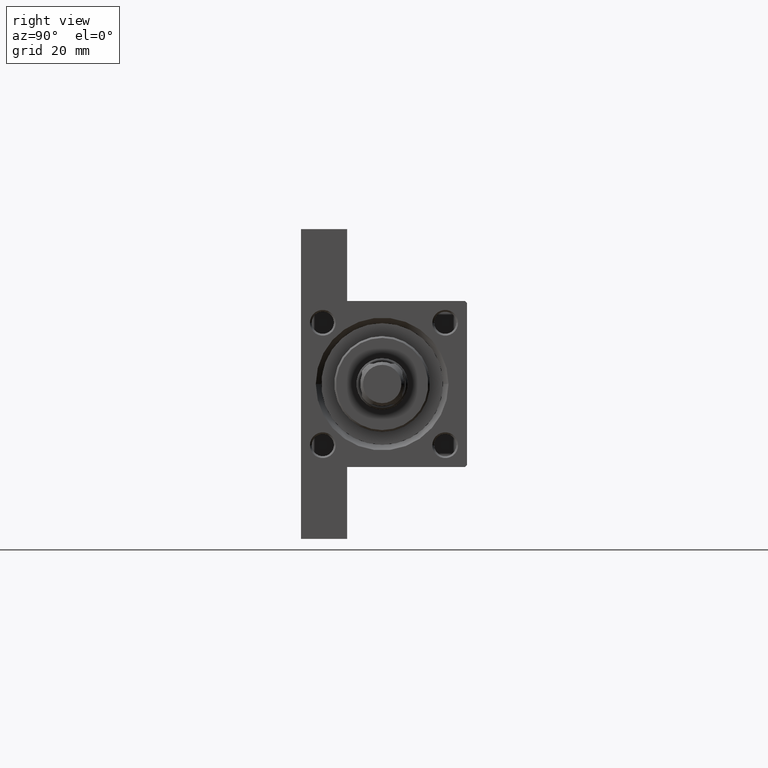
[diagram: clean part render]
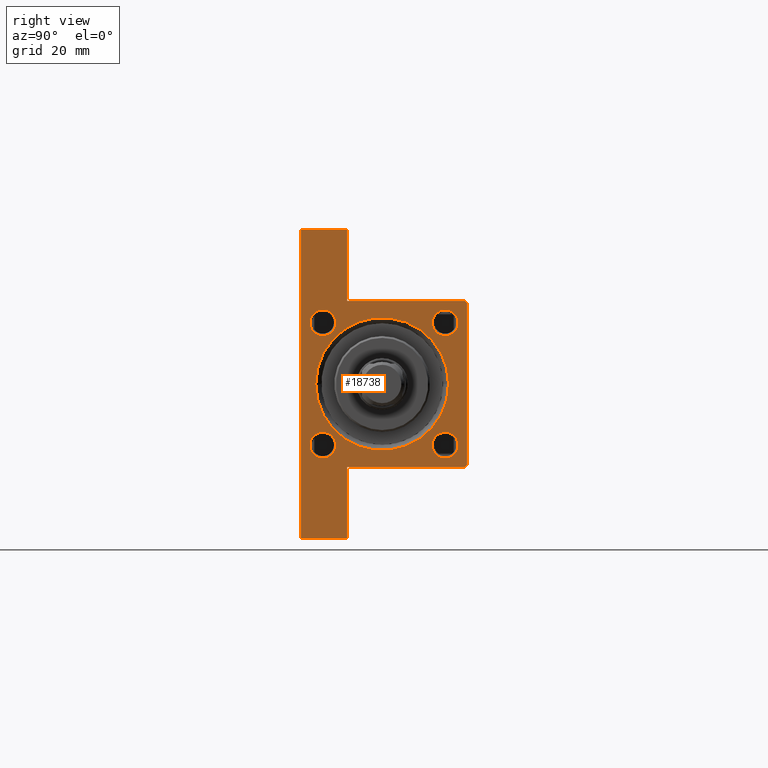
[diagram: same view with one face highlighted and labeled with its STEP entity id]
A machine part, right view. The second image highlights one B-rep face of the part: STEP entity #18738.
In plain terms, the highlighted planar face has unit normal (-1, 0, -0).
Its self-contained STEP definition (entity closure, byte-faithful):
#10 = ORIENTED_EDGE ( 'NONE', *, *, #20687, .T. ) ;
#159 = VECTOR ( 'NONE', #2686, 1000.000000000000000 ) ;
#346 = DIRECTION ( 'NONE',  ( -1.000000000000000000, 0.000000000000000000, -0.000000000000000000 ) ) ;
#618 = CARTESIAN_POINT ( 'NONE',  ( 122.9999999999999858, -42.00000000000000711, -22.50000000000000000 ) ) ;
#1151 = DIRECTION ( 'NONE',  ( -1.000000000000000000, 0.000000000000000000, -0.000000000000000000 ) ) ;
#1334 = CARTESIAN_POINT ( 'NONE',  ( 123.0000000000000142, 22.50000000000000355, -22.49999999999999645 ) ) ;
#1342 = DIRECTION ( 'NONE',  ( -1.000000000000000000, 0.000000000000000000, -0.000000000000000000 ) ) ;
#1639 = DIRECTION ( 'NONE',  ( 0.000000000000000000, 0.000000000000000000, 1.000000000000000000 ) ) ;
#1869 = FACE_BOUND ( 'NONE', #32946, .T. ) ;
#2524 = VECTOR ( 'NONE', #17754, 1000.000000000000114 ) ;
#2686 = DIRECTION ( 'NONE',  ( 0.000000000000000000, 0.000000000000000000, -1.000000000000000000 ) ) ;
#2910 = LINE ( 'NONE', #36055, #2524 ) ;
#3492 = ORIENTED_EDGE ( 'NONE', *, *, #32262, .T. ) ;
#3767 = ORIENTED_EDGE ( 'NONE', *, *, #15719, .T. ) ;
#3945 = VECTOR ( 'NONE', #27596, 1000.000000000000000 ) ;
#4136 = CARTESIAN_POINT ( 'NONE',  ( 123.0000000000000142, 16.59999999999999787, -20.10000000000000853 ) ) ;
#4268 = VECTOR ( 'NONE', #35802, 1000.000000000000000 ) ;
#5418 = AXIS2_PLACEMENT_3D ( 'NONE', #17645, #346, #15189 ) ;
#5861 = AXIS2_PLACEMENT_3D ( 'NONE', #16147, #23726, #34697 ) ;
#6087 = EDGE_CURVE ( 'NONE', #20013, #45430, #12065, .T. ) ;
#6097 = VERTEX_POINT ( 'NONE', #27620 ) ;
#6868 = CIRCLE ( 'NONE', #19306, 3.500000000000003109 ) ;
#6983 = EDGE_CURVE ( 'NONE', #7300, #6097, #29641, .T. ) ;
#7116 = CIRCLE ( 'NONE', #34353, 3.500000000000003109 ) ;
#7300 = VERTEX_POINT ( 'NONE', #26916 ) ;
#7434 = DIRECTION ( 'NONE',  ( 0.000000000000000000, 0.000000000000000000, 1.000000000000000000 ) ) ;
#7997 = LINE ( 'NONE', #18704, #42907 ) ;
#8643 = AXIS2_PLACEMENT_3D ( 'NONE', #42493, #18211, #10660 ) ;
#8756 = LINE ( 'NONE', #31404, #32081 ) ;
#9577 = VERTEX_POINT ( 'NONE', #28778 ) ;
#9661 = CARTESIAN_POINT ( 'NONE',  ( 123.0000000000000142, -16.60000000000000497, -16.60000000000000497 ) ) ;
#9679 = FACE_BOUND ( 'NONE', #37996, .T. ) ;
#9685 = CARTESIAN_POINT ( 'NONE',  ( 123.0000000000000142, 16.59999999999999787, 16.60000000000000497 ) ) ;
#10483 = CIRCLE ( 'NONE', #23734, 3.500000000000003109 ) ;
#10660 = DIRECTION ( 'NONE',  ( 0.000000000000000000, 0.000000000000000000, 1.000000000000000000 ) ) ;
#10870 = EDGE_CURVE ( 'NONE', #9577, #14818, #2910, .T. ) ;
#11773 = EDGE_LOOP ( 'NONE', ( #23317, #19470 ) ) ;
#12065 = CIRCLE ( 'NONE', #5861, 3.500000000000003109 ) ;
#12278 = CARTESIAN_POINT ( 'NONE',  ( 123.0000000000000142, 22.50000000000000355, 22.50000000000000355 ) ) ;
#12395 = ORIENTED_EDGE ( 'NONE', *, *, #32711, .T. ) ;
#12545 = EDGE_CURVE ( 'NONE', #6097, #7300, #6868, .T. ) ;
#12832 = FACE_BOUND ( 'NONE', #39596, .T. ) ;
#12945 = EDGE_CURVE ( 'NONE', #27159, #13865, #22422, .T. ) ;
#13125 = VECTOR ( 'NONE', #45658, 1000.000000000000000 ) ;
#13614 = VECTOR ( 'NONE', #19920, 1000.000000000000114 ) ;
#13714 = EDGE_CURVE ( 'NONE', #30398, #27372, #19335, .T. ) ;
#13801 = ORIENTED_EDGE ( 'NONE', *, *, #10870, .T. ) ;
#13865 = VERTEX_POINT ( 'NONE', #32243 ) ;
#14089 = CIRCLE ( 'NONE', #42143, 3.500000000000003109 ) ;
#14120 = CIRCLE ( 'NONE', #47574, 3.500000000000003109 ) ;
#14426 = DIRECTION ( 'NONE',  ( 0.000000000000000000, 0.000000000000000000, 1.000000000000000000 ) ) ;
#14818 = VERTEX_POINT ( 'NONE', #16726 ) ;
#15189 = DIRECTION ( 'NONE',  ( 0.000000000000000000, 0.000000000000000000, 1.000000000000000000 ) ) ;
#15384 = EDGE_LOOP ( 'NONE', ( #28572, #34476, #3492, #13801, #37827, #43676, #10, #43885, #23954, #39883 ) ) ;
#15704 = ORIENTED_EDGE ( 'NONE', *, *, #44926, .T. ) ;
#15719 = EDGE_CURVE ( 'NONE', #29851, #23817, #38084, .T. ) ;
#15880 = CARTESIAN_POINT ( 'NONE',  ( 123.0000000000000142, 16.59999999999999787, 13.10000000000000142 ) ) ;
#16147 = CARTESIAN_POINT ( 'NONE',  ( 123.0000000000000142, 16.59999999999999787, 16.60000000000000497 ) ) ;
#16187 = DIRECTION ( 'NONE',  ( 0.000000000000000000, 0.000000000000000000, 1.000000000000000000 ) ) ;
#16233 = DIRECTION ( 'NONE',  ( 0.000000000000000000, 0.000000000000000000, 1.000000000000000000 ) ) ;
#16357 = CARTESIAN_POINT ( 'NONE',  ( 123.0000000000000142, -16.59999999999999787, 13.09999999999999432 ) ) ;
#16636 = CIRCLE ( 'NONE', #21323, 18.00000000000000355 ) ;
#16726 = CARTESIAN_POINT ( 'NONE',  ( 123.0000000000000142, -22.49999999999999645, 21.99999999999997868 ) ) ;
#17324 = VERTEX_POINT ( 'NONE', #4136 ) ;
#17333 = CARTESIAN_POINT ( 'NONE',  ( 122.9999999999999858, -42.00000000000000711, -9.999999999999998224 ) ) ;
#17645 = CARTESIAN_POINT ( 'NONE',  ( 123.0000000000000142, -16.59999999999999787, 16.59999999999999787 ) ) ;
#17672 = CARTESIAN_POINT ( 'NONE',  ( 123.0000000000000000, 41.99999999999999289, -22.50000000000000000 ) ) ;
#17754 = DIRECTION ( 'NONE',  ( -0.000000000000000000, -0.7071067811865474617, -0.7071067811865474617 ) ) ;
#17897 = CARTESIAN_POINT ( 'NONE',  ( 123.0000000000000142, 0.000000000000000000, -0.4999999999999967804 ) ) ;
#18211 = DIRECTION ( 'NONE',  ( -1.000000000000000000, 0.000000000000000000, -0.000000000000000000 ) ) ;
#18704 = CARTESIAN_POINT ( 'NONE',  ( 122.9999999999999858, -42.00000000000000711, -9.999999999999998224 ) ) ;
#18738 = ADVANCED_FACE ( 'NONE', ( #12832, #20641, #19902, #9679, #1869, #35504 ), #24536, .F. ) ;
#19306 = AXIS2_PLACEMENT_3D ( 'NONE', #9661, #35958, #46433 ) ;
#19335 = LINE ( 'NONE', #12278, #13125 ) ;
#19381 = ORIENTED_EDGE ( 'NONE', *, *, #12945, .T. ) ;
#19470 = ORIENTED_EDGE ( 'NONE', *, *, #12545, .T. ) ;
#19828 = EDGE_CURVE ( 'NONE', #17324, #36166, #14089, .T. ) ;
#19902 = FACE_BOUND ( 'NONE', #11773, .T. ) ;
#19920 = DIRECTION ( 'NONE',  ( 0.000000000000000000, -0.7071067811865474617, 0.7071067811865474617 ) ) ;
#20013 = VERTEX_POINT ( 'NONE', #30874 ) ;
#20641 = FACE_BOUND ( 'NONE', #31681, .T. ) ;
#20687 = EDGE_CURVE ( 'NONE', #35068, #24713, #7997, .T. ) ;
#20964 = CARTESIAN_POINT ( 'NONE',  ( 123.0000000000000000, 41.99999999999999289, -9.999999999999998224 ) ) ;
#21177 = VECTOR ( 'NONE', #39257, 1000.000000000000000 ) ;
#21323 = AXIS2_PLACEMENT_3D ( 'NONE', #17897, #33010, #7434 ) ;
#21940 = EDGE_CURVE ( 'NONE', #14818, #24089, #8756, .T. ) ;
#22106 = VERTEX_POINT ( 'NONE', #39935 ) ;
#22422 = CIRCLE ( 'NONE', #46550, 18.00000000000000355 ) ;
#22494 = CARTESIAN_POINT ( 'NONE',  ( 123.0000000000000142, -22.49999999999999645, -9.999999999999980460 ) ) ;
#22617 = CARTESIAN_POINT ( 'NONE',  ( 123.0000000000000142, 16.59999999999999787, -16.60000000000000497 ) ) ;
#22844 = ORIENTED_EDGE ( 'NONE', *, *, #24758, .T. ) ;
#22861 = DIRECTION ( 'NONE',  ( -1.000000000000000000, 0.000000000000000000, -0.000000000000000000 ) ) ;
#23268 = LINE ( 'NONE', #1334, #42782 ) ;
#23317 = ORIENTED_EDGE ( 'NONE', *, *, #6983, .T. ) ;
#23726 = DIRECTION ( 'NONE',  ( -1.000000000000000000, 0.000000000000000000, -0.000000000000000000 ) ) ;
#23734 = AXIS2_PLACEMENT_3D ( 'NONE', #43068, #24552, #1639 ) ;
#23817 = VERTEX_POINT ( 'NONE', #16357 ) ;
#23954 = ORIENTED_EDGE ( 'NONE', *, *, #26091, .F. ) ;
#24089 = VERTEX_POINT ( 'NONE', #22494 ) ;
#24536 = PLANE ( 'NONE',  #36655 ) ;
#24552 = DIRECTION ( 'NONE',  ( -1.000000000000000000, 0.000000000000000000, -0.000000000000000000 ) ) ;
#24623 = ORIENTED_EDGE ( 'NONE', *, *, #30904, .T. ) ;
#24713 = VERTEX_POINT ( 'NONE', #618 ) ;
#24758 = EDGE_CURVE ( 'NONE', #23817, #29851, #14120, .T. ) ;
#26062 = EDGE_CURVE ( 'NONE', #22106, #27372, #36537, .T. ) ;
#26091 = EDGE_CURVE ( 'NONE', #22106, #44137, #32622, .T. ) ;
#26113 = ORIENTED_EDGE ( 'NONE', *, *, #6087, .T. ) ;
#26146 = CARTESIAN_POINT ( 'NONE',  ( 123.0000000000000142, 2.204364238465235822E-15, 17.50000000000000355 ) ) ;
#26916 = CARTESIAN_POINT ( 'NONE',  ( 123.0000000000000142, -16.60000000000000497, -20.10000000000000853 ) ) ;
#27159 = VERTEX_POINT ( 'NONE', #26146 ) ;
#27372 = VERTEX_POINT ( 'NONE', #46210 ) ;
#27596 = DIRECTION ( 'NONE',  ( -0.000000000000000000, -1.000000000000000000, -0.000000000000000000 ) ) ;
#27620 = CARTESIAN_POINT ( 'NONE',  ( 123.0000000000000142, -16.60000000000000497, -13.10000000000000142 ) ) ;
#28572 = ORIENTED_EDGE ( 'NONE', *, *, #13714, .F. ) ;
#28582 = DIRECTION ( 'NONE',  ( -1.000000000000000000, 0.000000000000000000, -0.000000000000000000 ) ) ;
#28778 = CARTESIAN_POINT ( 'NONE',  ( 123.0000000000000142, -21.99999999999996803, 22.49999999999999289 ) ) ;
#29203 = DIRECTION ( 'NONE',  ( 0.000000000000000000, 0.000000000000000000, 1.000000000000000000 ) ) ;
#29531 = CARTESIAN_POINT ( 'NONE',  ( 123.0000000000000142, 0.000000000000000000, -0.4999999999999967804 ) ) ;
#29641 = CIRCLE ( 'NONE', #8643, 3.500000000000003109 ) ;
#29851 = VERTEX_POINT ( 'NONE', #47433 ) ;
#30398 = VERTEX_POINT ( 'NONE', #33609 ) ;
#30637 = LINE ( 'NONE', #42099, #13614 ) ;
#30874 = CARTESIAN_POINT ( 'NONE',  ( 123.0000000000000142, 16.59999999999999787, 20.10000000000000853 ) ) ;
#30904 = EDGE_CURVE ( 'NONE', #13865, #27159, #16636, .T. ) ;
#31404 = CARTESIAN_POINT ( 'NONE',  ( 123.0000000000000142, -22.49999999999999645, 22.49999999999999289 ) ) ;
#31546 = VERTEX_POINT ( 'NONE', #39223 ) ;
#31586 = DIRECTION ( 'NONE',  ( -0.000000000000000000, 0.000000000000000000, 1.000000000000000000 ) ) ;
#31636 = DIRECTION ( 'NONE',  ( 0.000000000000000000, 0.000000000000000000, -1.000000000000000000 ) ) ;
#31681 = EDGE_LOOP ( 'NONE', ( #22844, #3767 ) ) ;
#31718 = LINE ( 'NONE', #17333, #3945 ) ;
#32081 = VECTOR ( 'NONE', #31636, 1000.000000000000000 ) ;
#32243 = CARTESIAN_POINT ( 'NONE',  ( 123.0000000000000142, 0.000000000000000000, -18.50000000000000000 ) ) ;
#32262 = EDGE_CURVE ( 'NONE', #31546, #9577, #39238, .T. ) ;
#32557 = EDGE_CURVE ( 'NONE', #30398, #31546, #30637, .T. ) ;
#32622 = LINE ( 'NONE', #46771, #159 ) ;
#32711 = EDGE_CURVE ( 'NONE', #36166, #17324, #10483, .T. ) ;
#32946 = EDGE_LOOP ( 'NONE', ( #24623, #19381 ) ) ;
#33010 = DIRECTION ( 'NONE',  ( -1.000000000000000000, 0.000000000000000000, -0.000000000000000000 ) ) ;
#33025 = CARTESIAN_POINT ( 'NONE',  ( 122.9999999999999858, -42.00000000000000711, -9.999999999999998224 ) ) ;
#33578 = DIRECTION ( 'NONE',  ( 0.000000000000000000, 0.000000000000000000, -1.000000000000000000 ) ) ;
#33609 = CARTESIAN_POINT ( 'NONE',  ( 123.0000000000000142, 22.50000000000000355, 21.99999999999998934 ) ) ;
#34223 = DIRECTION ( 'NONE',  ( 0.000000000000000000, -1.000000000000000000, -7.709882115452476934E-17 ) ) ;
#34353 = AXIS2_PLACEMENT_3D ( 'NONE', #9685, #1151, #16233 ) ;
#34476 = ORIENTED_EDGE ( 'NONE', *, *, #32557, .T. ) ;
#34697 = DIRECTION ( 'NONE',  ( 0.000000000000000000, 0.000000000000000000, 1.000000000000000000 ) ) ;
#35068 = VERTEX_POINT ( 'NONE', #33025 ) ;
#35260 = CARTESIAN_POINT ( 'NONE',  ( 123.0000000000000142, 0.000000000000000000, 0.000000000000000000 ) ) ;
#35504 = FACE_OUTER_BOUND ( 'NONE', #15384, .T. ) ;
#35802 = DIRECTION ( 'NONE',  ( 0.000000000000000000, -1.000000000000000000, -2.312964634635742957E-16 ) ) ;
#35958 = DIRECTION ( 'NONE',  ( -1.000000000000000000, 0.000000000000000000, -0.000000000000000000 ) ) ;
#36055 = CARTESIAN_POINT ( 'NONE',  ( 123.0000000000000142, -22.49999999999999645, 21.99999999999997868 ) ) ;
#36166 = VERTEX_POINT ( 'NONE', #45441 ) ;
#36537 = LINE ( 'NONE', #20964, #21177 ) ;
#36655 = AXIS2_PLACEMENT_3D ( 'NONE', #35260, #39407, #31586 ) ;
#37827 = ORIENTED_EDGE ( 'NONE', *, *, #21940, .T. ) ;
#37996 = EDGE_LOOP ( 'NONE', ( #47020, #12395 ) ) ;
#38084 = CIRCLE ( 'NONE', #5418, 3.500000000000003109 ) ;
#38641 = CARTESIAN_POINT ( 'NONE',  ( 123.0000000000000142, -16.59999999999999787, 16.59999999999999787 ) ) ;
#39223 = CARTESIAN_POINT ( 'NONE',  ( 123.0000000000000142, 21.99999999999998934, 22.50000000000000355 ) ) ;
#39238 = LINE ( 'NONE', #46512, #4268 ) ;
#39257 = DIRECTION ( 'NONE',  ( -7.116814260417667527E-16, -1.000000000000000000, 0.000000000000000000 ) ) ;
#39407 = DIRECTION ( 'NONE',  ( -1.000000000000000000, 0.000000000000000000, -0.000000000000000000 ) ) ;
#39596 = EDGE_LOOP ( 'NONE', ( #15704, #26113 ) ) ;
#39807 = EDGE_CURVE ( 'NONE', #44137, #24713, #23268, .T. ) ;
#39883 = ORIENTED_EDGE ( 'NONE', *, *, #26062, .T. ) ;
#39935 = CARTESIAN_POINT ( 'NONE',  ( 123.0000000000000000, 41.99999999999999289, -9.999999999999998224 ) ) ;
#42099 = CARTESIAN_POINT ( 'NONE',  ( 123.0000000000000142, 21.99999999999998934, 22.50000000000000355 ) ) ;
#42143 = AXIS2_PLACEMENT_3D ( 'NONE', #22617, #22861, #29203 ) ;
#42189 = EDGE_CURVE ( 'NONE', #24089, #35068, #31718, .T. ) ;
#42493 = CARTESIAN_POINT ( 'NONE',  ( 123.0000000000000142, -16.60000000000000497, -16.60000000000000497 ) ) ;
#42782 = VECTOR ( 'NONE', #34223, 1000.000000000000000 ) ;
#42907 = VECTOR ( 'NONE', #33578, 1000.000000000000000 ) ;
#43068 = CARTESIAN_POINT ( 'NONE',  ( 123.0000000000000142, 16.59999999999999787, -16.60000000000000497 ) ) ;
#43676 = ORIENTED_EDGE ( 'NONE', *, *, #42189, .T. ) ;
#43885 = ORIENTED_EDGE ( 'NONE', *, *, #39807, .F. ) ;
#44137 = VERTEX_POINT ( 'NONE', #17672 ) ;
#44926 = EDGE_CURVE ( 'NONE', #45430, #20013, #7116, .T. ) ;
#45430 = VERTEX_POINT ( 'NONE', #15880 ) ;
#45441 = CARTESIAN_POINT ( 'NONE',  ( 123.0000000000000142, 16.59999999999999787, -13.10000000000000142 ) ) ;
#45658 = DIRECTION ( 'NONE',  ( 0.000000000000000000, 0.000000000000000000, -1.000000000000000000 ) ) ;
#46210 = CARTESIAN_POINT ( 'NONE',  ( 122.9999999999999858, 22.49999999999999289, -9.999999999999998224 ) ) ;
#46433 = DIRECTION ( 'NONE',  ( 0.000000000000000000, 0.000000000000000000, 1.000000000000000000 ) ) ;
#46512 = CARTESIAN_POINT ( 'NONE',  ( 123.0000000000000142, 22.50000000000000355, 22.50000000000000355 ) ) ;
#46550 = AXIS2_PLACEMENT_3D ( 'NONE', #29531, #28582, #14426 ) ;
#46771 = CARTESIAN_POINT ( 'NONE',  ( 123.0000000000000000, 41.99999999999999289, -9.999999999999998224 ) ) ;
#47020 = ORIENTED_EDGE ( 'NONE', *, *, #19828, .T. ) ;
#47433 = CARTESIAN_POINT ( 'NONE',  ( 123.0000000000000142, -16.59999999999999787, 20.10000000000000142 ) ) ;
#47574 = AXIS2_PLACEMENT_3D ( 'NONE', #38641, #1342, #16187 ) ;